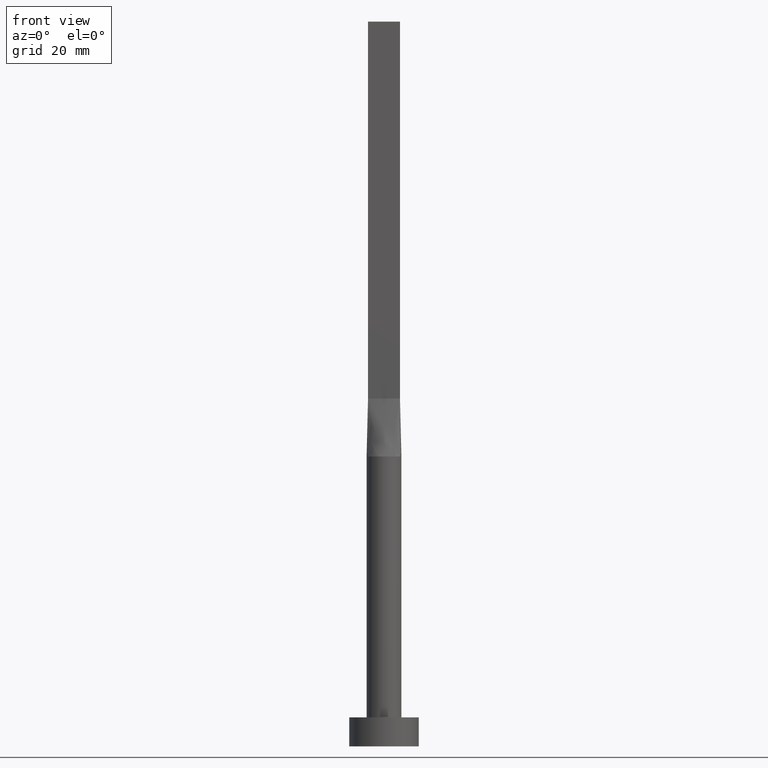
[diagram: clean part render]
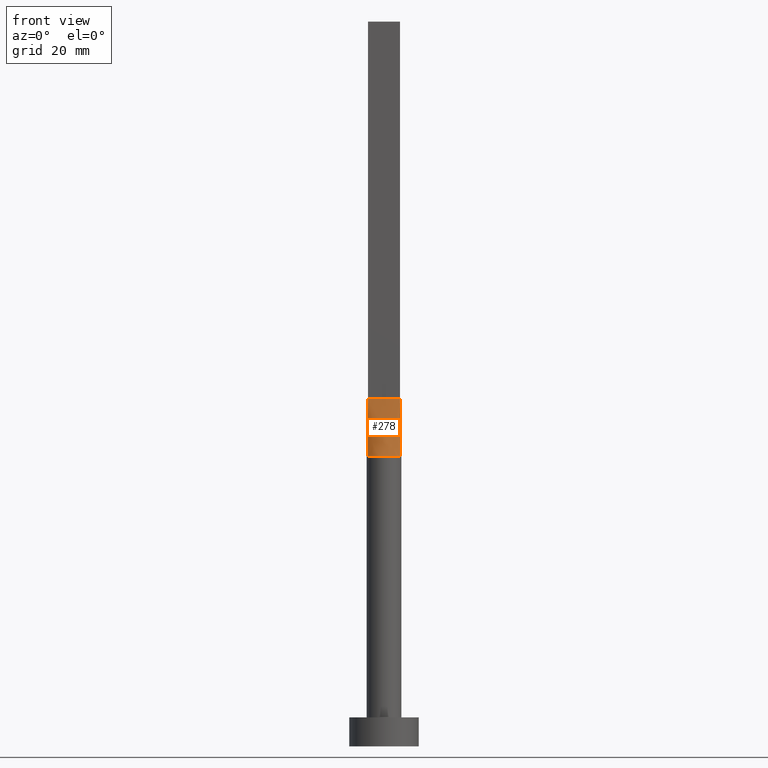
[diagram: same view with one face highlighted and labeled with its STEP entity id]
A machine part, front view. The second image highlights one B-rep face of the part: STEP entity #278.
In plain terms, the highlighted face is a freeform B-spline surface patch.
Its self-contained STEP definition (entity closure, byte-faithful):
#1 = ORIENTED_EDGE ( 'NONE', *, *, #524, .T. ) ;
#13 = CARTESIAN_POINT ( 'NONE',  ( -0.4583333333333330373, -0.9999999999999995559, 60.00000000000000000 ) ) ;
#21 = CARTESIAN_POINT ( 'NONE',  ( -2.625980160873452540, -1.476334031700885507, 49.99999999999998579 ) ) ;
#25 = DIRECTION ( 'NONE',  ( 1.000000000000000000, 0.000000000000000000, 0.000000000000000000 ) ) ;
#40 = CARTESIAN_POINT ( 'NONE',  ( -0.9166666666666664076, -0.9999999999999995559, 60.00000000000000000 ) ) ;
#42 = CARTESIAN_POINT ( 'NONE',  ( 2.819380270465311700, -1.025229189260112417, 49.99999999999999289 ) ) ;
#43 = VERTEX_POINT ( 'NONE', #288 ) ;
#56 = CARTESIAN_POINT ( 'NONE',  ( -0.2291666666666662966, -0.9999999999999995559, 60.00000000000000000 ) ) ;
#57 = DIRECTION ( 'NONE',  ( -0.006937837988376364777, -0.002522850177591326286, -0.9999727504442450510 ) ) ;
#60 = DIRECTION ( 'NONE',  ( -0.006937837988376364777, 0.002522850177591326286, 0.9999727504442450510 ) ) ;
#61 = CARTESIAN_POINT ( 'NONE',  ( -2.819380270465311700, -1.025229189260111973, 49.99999999999999289 ) ) ;
#72 = VERTEX_POINT ( 'NONE', #552 ) ;
#88 = AXIS2_PLACEMENT_3D ( 'NONE', #424, #159, #25 ) ;
#94 = CARTESIAN_POINT ( 'NONE',  ( -2.291666666666666519, -0.9999999999999995559, 60.00000000000000000 ) ) ;
#98 = CARTESIAN_POINT ( 'NONE',  ( 1.627925520694712080, -2.539128397820341831, 50.00000000000000000 ) ) ;
#101 = FACE_OUTER_BOUND ( 'NONE', #121, .T. ) ;
#121 = EDGE_LOOP ( 'NONE', ( #1, #165, #240, #260 ) ) ;
#130 = CARTESIAN_POINT ( 'NONE',  ( 0.4583333333333337034, -0.9999999999999995559, 60.00000000000000000 ) ) ;
#136 = VECTOR ( 'NONE', #332, 1000.000000000000000 ) ;
#151 = CARTESIAN_POINT ( 'NONE',  ( -1.145833333333333037, -0.9999999999999995559, 60.00000000000000000 ) ) ;
#159 = DIRECTION ( 'NONE',  ( 0.000000000000000000, 0.000000000000000000, 1.000000000000000000 ) ) ;
#160 = CARTESIAN_POINT ( 'NONE',  ( -2.750000000000000000, -0.9999999999999993339, 60.00000000000000000 ) ) ;
#165 = ORIENTED_EDGE ( 'NONE', *, *, #335, .T. ) ;
#169 = CARTESIAN_POINT ( 'NONE',  ( 0.9166666666666669627, -0.9999999999999995559, 60.00000000000000000 ) ) ;
#191 = CARTESIAN_POINT ( 'NONE',  ( 2.291666666666666519, -1.000000000000000000, 60.00000000000000000 ) ) ;
#201 = EDGE_CURVE ( 'NONE', #43, #485, #459, .T. ) ;
#229 = CARTESIAN_POINT ( 'NONE',  ( 0.3502136323054372835, -3.000000000000000444, 49.99999999999998579 ) ) ;
#231 = CARTESIAN_POINT ( 'NONE',  ( -2.750000000000000000, -0.9999999999999993339, 60.00000000000000000 ) ) ;
#233 = CARTESIAN_POINT ( 'NONE',  ( 2.520833333333333037, -1.000000000000000000, 60.00000000000000000 ) ) ;
#240 = ORIENTED_EDGE ( 'NONE', *, *, #257, .F. ) ;
#243 = CIRCLE ( 'NONE', #88, 3.000000000000000444 ) ;
#257 = EDGE_CURVE ( 'NONE', #43, #356, #324, .T. ) ;
#258 = CARTESIAN_POINT ( 'NONE',  ( 2.750000000000000000, -0.9999999999999997780, 60.00000000000000000 ) ) ;
#260 = ORIENTED_EDGE ( 'NONE', *, *, #201, .T. ) ;
#268 = VECTOR ( 'NONE', #60, 1000.000000000000227 ) ;
#274 = CARTESIAN_POINT ( 'NONE',  ( -2.115507543051069472, -2.149870311632975373, 49.99999999999999289 ) ) ;
#278 = ADVANCED_FACE ( 'NONE', ( #101 ), #313, .T. ) ;
#280 = CARTESIAN_POINT ( 'NONE',  ( -2.314486317179578645, -1.928337902455806496, 49.99999999999998579 ) ) ;
#288 = CARTESIAN_POINT ( 'NONE',  ( -2.750000000000000000, -0.9999999999999993339, 60.00000000000000000 ) ) ;
#313 = B_SPLINE_SURFACE_WITH_KNOTS ( 'NONE', 3, 1, ( 
 ( #61, #231 ),
 ( #556, #409 ),
 ( #21, #94 ),
 ( #280, #316 ),
 ( #274, #317 ),
 ( #513, #151 ),
 ( #464, #40 ),
 ( #346, #13 ),
 ( #477, #56 ),
 ( #229, #369 ),
 ( #562, #130 ),
 ( #418, #169 ),
 ( #98, #372 ),
 ( #450, #383 ),
 ( #333, #457 ),
 ( #320, #191 ),
 ( #448, #233 ),
 ( #42, #258 ) ),
 .UNSPECIFIED., .F., .F., .F.,
 ( 4, 2, 2, 2, 2, 2, 2, 2, 4 ),
 ( 2, 2 ),
 ( 0.000000000000000000, 0.1250000000000000000, 0.2500000000000000000, 0.3750000000000000000, 0.5000000000000000000, 0.6250000000000000000, 0.7500000000000000000, 0.8750000000000000000, 1.000000000000000000 ),
 ( 0.000000000000000000, 1.000000000000000000 ),
 .UNSPECIFIED. ) ;
#316 = CARTESIAN_POINT ( 'NONE',  ( -1.833333333333333037, -0.9999999999999995559, 60.00000000000000000 ) ) ;
#317 = CARTESIAN_POINT ( 'NONE',  ( -1.604166666666666519, -0.9999999999999995559, 60.00000000000000000 ) ) ;
#320 = CARTESIAN_POINT ( 'NONE',  ( 2.625980160873452984, -1.476334031700886618, 50.00000000000000711 ) ) ;
#324 = LINE ( 'NONE', #160, #136 ) ;
#332 = DIRECTION ( 'NONE',  ( 1.000000000000000000, -7.885106708985487801E-17, 0.000000000000000000 ) ) ;
#333 = CARTESIAN_POINT ( 'NONE',  ( 2.314486317179579533, -1.928337902455807606, 50.00000000000000000 ) ) ;
#335 = EDGE_CURVE ( 'NONE', #72, #356, #494, .T. ) ;
#346 = CARTESIAN_POINT ( 'NONE',  ( -0.6998073349918614294, -2.936959335800558346, 49.99999999999998579 ) ) ;
#356 = VERTEX_POINT ( 'NONE', #443 ) ;
#369 = CARTESIAN_POINT ( 'NONE',  ( 0.2291666666666670460, -0.9999999999999995559, 60.00000000000000000 ) ) ;
#372 = CARTESIAN_POINT ( 'NONE',  ( 1.145833333333333703, -0.9999999999999995559, 60.00000000000000000 ) ) ;
#377 = CARTESIAN_POINT ( 'NONE',  ( -2.819413526938078896, -1.025241406939938926, 49.99999999999999289 ) ) ;
#383 = CARTESIAN_POINT ( 'NONE',  ( 1.604166666666666963, -0.9999999999999997780, 60.00000000000000000 ) ) ;
#387 = VECTOR ( 'NONE', #57, 1000.000000000000227 ) ;
#409 = CARTESIAN_POINT ( 'NONE',  ( -2.520833333333333037, -0.9999999999999993339, 60.00000000000000000 ) ) ;
#418 = CARTESIAN_POINT ( 'NONE',  ( 1.338960936578149630, -2.706038443291638007, 49.99999999999998579 ) ) ;
#424 = CARTESIAN_POINT ( 'NONE',  ( 0.000000000000000000, 0.000000000000000000, 49.99999999999999289 ) ) ;
#443 = CARTESIAN_POINT ( 'NONE',  ( 2.750000000000000000, -0.9999999999999997780, 60.00000000000000000 ) ) ;
#448 = CARTESIAN_POINT ( 'NONE',  ( 2.739088299662391979, -1.246032108968142982, 50.00000000000000711 ) ) ;
#450 = CARTESIAN_POINT ( 'NONE',  ( 2.115507543051068140, -2.149870311632976705, 49.99999999999997868 ) ) ;
#457 = CARTESIAN_POINT ( 'NONE',  ( 1.833333333333333481, -1.000000000000000000, 60.00000000000000000 ) ) ;
#459 = LINE ( 'NONE', #564, #387 ) ;
#462 = CARTESIAN_POINT ( 'NONE',  ( 2.784690135232656072, -1.012614594630056208, 54.99999999999999289 ) ) ;
#464 = CARTESIAN_POINT ( 'NONE',  ( -1.338960936578150518, -2.706038443291638007, 50.00000000000000000 ) ) ;
#477 = CARTESIAN_POINT ( 'NONE',  ( -0.3502136323054380052, -3.000000000000000888, 50.00000000000000000 ) ) ;
#485 = VERTEX_POINT ( 'NONE', #377 ) ;
#494 = LINE ( 'NONE', #462, #268 ) ;
#513 = CARTESIAN_POINT ( 'NONE',  ( -1.627925520694712525, -2.539128397820340055, 49.99999999999998579 ) ) ;
#524 = EDGE_CURVE ( 'NONE', #485, #72, #243, .T. ) ;
#552 = CARTESIAN_POINT ( 'NONE',  ( 2.819430526142641558, -1.025247683279451261, 49.99999999999999289 ) ) ;
#556 = CARTESIAN_POINT ( 'NONE',  ( -2.739088299662391979, -1.246032108968140983, 49.99999999999999289 ) ) ;
#562 = CARTESIAN_POINT ( 'NONE',  ( 0.6998073349918603192, -2.936959335800557902, 50.00000000000000000 ) ) ;
#564 = CARTESIAN_POINT ( 'NONE',  ( -2.784690135232656072, -1.012614594630055764, 54.99999999999999289 ) ) ;